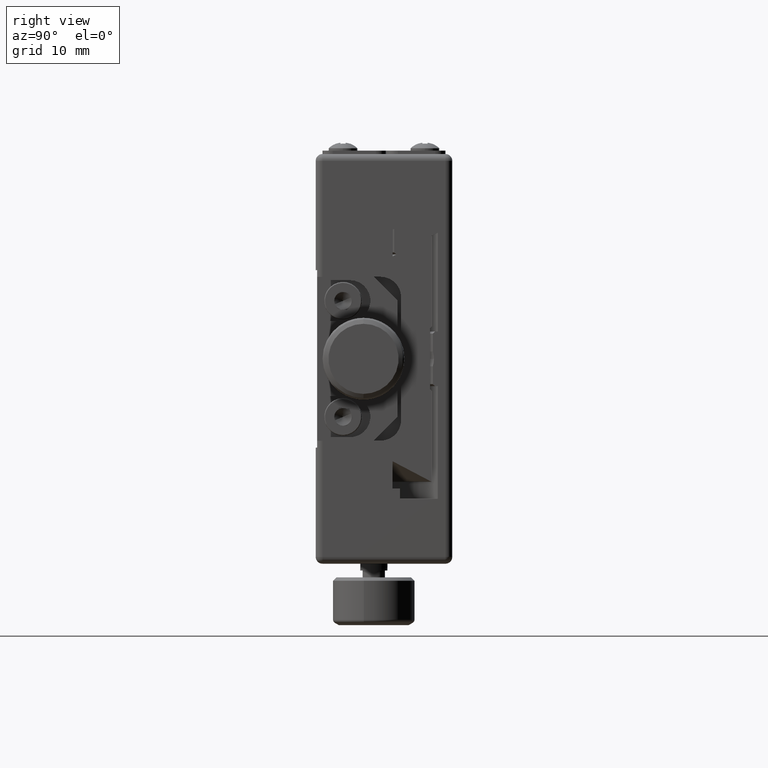
[diagram: clean part render]
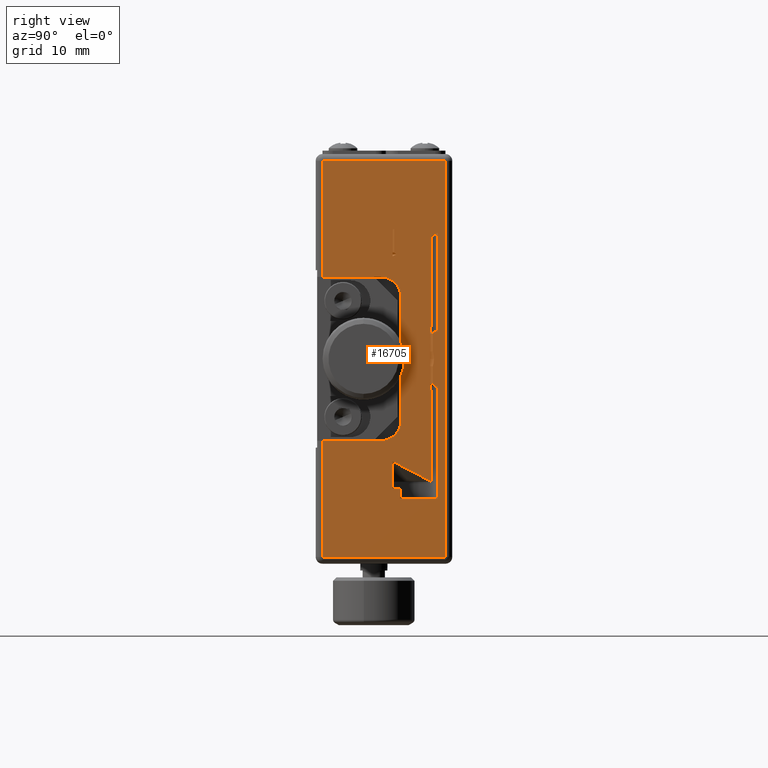
[diagram: same view with one face highlighted and labeled with its STEP entity id]
A machine part, right view. The second image highlights one B-rep face of the part: STEP entity #16705.
In plain terms, the highlighted planar face has unit normal (-1, 0, 0).
Its self-contained STEP definition (entity closure, byte-faithful):
#10 = CARTESIAN_POINT ( 'NONE',  ( 30.20294266869610311, -8.392311314680949152, -18.00000000000000000 ) ) ;
#210 = ORIENTED_EDGE ( 'NONE', *, *, #26606, .F. ) ;
#355 = EDGE_CURVE ( 'NONE', #30709, #576, #12602, .T. ) ;
#551 = CARTESIAN_POINT ( 'NONE',  ( 30.20294266869610311, -24.39231131468095271, 12.00000000000000000 ) ) ;
#572 = CARTESIAN_POINT ( 'NONE',  ( 30.20294266869610311, -25.19231131468094986, -12.00000000000000000 ) ) ;
#576 = VERTEX_POINT ( 'NONE', #34011 ) ;
#592 = VECTOR ( 'NONE', #15459, 1000.000000000000000 ) ;
#632 = VERTEX_POINT ( 'NONE', #3593 ) ;
#752 = DIRECTION ( 'NONE',  ( 0.000000000000000000, 0.000000000000000000, -1.000000000000000000 ) ) ;
#760 = VERTEX_POINT ( 'NONE', #21280 ) ;
#810 = ORIENTED_EDGE ( 'NONE', *, *, #1186, .F. ) ;
#833 = CARTESIAN_POINT ( 'NONE',  ( 30.20294266869610311, -8.392311314680949152, 4.721779902321929789 ) ) ;
#964 = CARTESIAN_POINT ( 'NONE',  ( 30.20294266869613153, -8.139194396920000685, 0.7294761927904745979 ) ) ;
#1013 = CARTESIAN_POINT ( 'NONE',  ( 30.20294266869610311, -14.13094673901852083, -15.00000000107774945 ) ) ;
#1103 = CARTESIAN_POINT ( 'NONE',  ( 30.20294266869610311, -14.13094673901852083, -15.00000000107774945 ) ) ;
#1128 = LINE ( 'NONE', #21066, #14824 ) ;
#1131 = ORIENTED_EDGE ( 'NONE', *, *, #8778, .F. ) ;
#1186 = EDGE_CURVE ( 'NONE', #33326, #18528, #26135, .T. ) ;
#1202 = CARTESIAN_POINT ( 'NONE',  ( 30.20294266869610311, -7.529256846304889450, 30.00000000000000000 ) ) ;
#1317 = EDGE_CURVE ( 'NONE', #26418, #632, #21059, .T. ) ;
#1332 = ORIENTED_EDGE ( 'NONE', *, *, #18548, .F. ) ;
#1368 = DIRECTION ( 'NONE',  ( 0.000000000000000000, 0.000000000000000000, -1.000000000000000000 ) ) ;
#1511 = ORIENTED_EDGE ( 'NONE', *, *, #34485, .F. ) ;
#1651 = CARTESIAN_POINT ( 'NONE',  ( 30.20294266869610311, -8.250266260733720713, 3.700000000000000178 ) ) ;
#2051 = CARTESIAN_POINT ( 'NONE',  ( 30.20294266869610311, -8.139430754232289900, -3.800027182686144922 ) ) ;
#2286 = VERTEX_POINT ( 'NONE', #10 ) ;
#2426 = CARTESIAN_POINT ( 'NONE',  ( 30.20294266869610311, -8.250266260733720713, 30.00000000000000000 ) ) ;
#2586 = EDGE_CURVE ( 'NONE', #21327, #30931, #4073, .T. ) ;
#2739 = DIRECTION ( 'NONE',  ( -1.000000000000000000, 0.000000000000000000, 0.000000000000000000 ) ) ;
#3025 = ORIENTED_EDGE ( 'NONE', *, *, #10467, .T. ) ;
#3191 = B_SPLINE_CURVE_WITH_KNOTS ( 'NONE', 3,
 ( #3608, #14999, #28622, #14446 ),
 .UNSPECIFIED., .F., .F.,
 ( 4, 4 ),
 ( 0.01298811321490420112, 0.01331899030960933920 ),
 .UNSPECIFIED. ) ;
#3235 = ORIENTED_EDGE ( 'NONE', *, *, #18021, .T. ) ;
#3349 = EDGE_CURVE ( 'NONE', #5542, #31042, #35688, .T. ) ;
#3423 = EDGE_CURVE ( 'NONE', #25913, #23621, #10139, .T. ) ;
#3519 = DIRECTION ( 'NONE',  ( 0.000000000000000000, 0.000000000000000000, -1.000000000000000000 ) ) ;
#3551 = EDGE_CURVE ( 'NONE', #26819, #8826, #9508, .T. ) ;
#3593 = CARTESIAN_POINT ( 'NONE',  ( 30.20294266869610311, -7.529256846304869910, -20.50000000000000000 ) ) ;
#3608 = CARTESIAN_POINT ( 'NONE',  ( 30.20294266869610311, -8.637864518048498752, -4.500000000000000000 ) ) ;
#3742 = ORIENTED_EDGE ( 'NONE', *, *, #33245, .F. ) ;
#4073 = LINE ( 'NONE', #21216, #36678 ) ;
#4169 = CARTESIAN_POINT ( 'NONE',  ( 30.20294266869610311, -13.03844941583199990, 30.00000000000000000 ) ) ;
#4342 = VERTEX_POINT ( 'NONE', #17008 ) ;
#4532 = CIRCLE ( 'NONE', #25399, 3.000000000000000888 ) ;
#4555 = VECTOR ( 'NONE', #12590, 1000.000000000000000 ) ;
#4572 = CARTESIAN_POINT ( 'NONE',  ( 30.20294266869610311, -8.250266260741659252, -1.085126720735905881 ) ) ;
#4736 = VECTOR ( 'NONE', #27037, 1000.000000000000000 ) ;
#5137 = EDGE_CURVE ( 'NONE', #9889, #26099, #22435, .T. ) ;
#5145 = VERTEX_POINT ( 'NONE', #8649 ) ;
#5278 = CARTESIAN_POINT ( 'NONE',  ( 30.20294266869610311, -8.123631864685485482, 18.15486313654718842 ) ) ;
#5357 = ORIENTED_EDGE ( 'NONE', *, *, #15384, .T. ) ;
#5470 = ORIENTED_EDGE ( 'NONE', *, *, #3349, .T. ) ;
#5542 = VERTEX_POINT ( 'NONE', #15863 ) ;
#5667 = ORIENTED_EDGE ( 'NONE', *, *, #18671, .T. ) ;
#5778 = ORIENTED_EDGE ( 'NONE', *, *, #12517, .F. ) ;
#5856 = CARTESIAN_POINT ( 'NONE',  ( 30.20294266869610311, -13.58505286391035938, 15.29999999999999893 ) ) ;
#6174 = CARTESIAN_POINT ( 'NONE',  ( 30.20294266869610311, -5.392311314680939383, -29.00000000000000000 ) ) ;
#6202 = LINE ( 'NONE', #19834, #18372 ) ;
#6215 = CARTESIAN_POINT ( 'NONE',  ( 30.20294266869610311, -7.529256846304869910, -4.000000000000000000 ) ) ;
#6233 = VERTEX_POINT ( 'NONE', #27132 ) ;
#6359 = CARTESIAN_POINT ( 'NONE',  ( 30.20294266869610311, -8.392311314680949152, 4.721779902321929789 ) ) ;
#6516 = DIRECTION ( 'NONE',  ( 0.000000000000000000, 0.000000000000000000, -1.000000000000000000 ) ) ;
#6587 = VERTEX_POINT ( 'NONE', #21438 ) ;
#6656 = B_SPLINE_CURVE_WITH_KNOTS ( 'NONE', 3,
 ( #33614, #5278, #27474, #30462 ),
 .UNSPECIFIED., .F., .F.,
 ( 4, 4 ),
 ( 0.02352887787165649017, 0.02453390777618489824 ),
 .UNSPECIFIED. ) ;
#6690 = CARTESIAN_POINT ( 'NONE',  ( 30.20294266869610311, -5.392311314680939383, 19.00000000000000000 ) ) ;
#6732 = EDGE_CURVE ( 'NONE', #35077, #15617, #22913, .T. ) ;
#6797 = CARTESIAN_POINT ( 'NONE',  ( 30.20294266869610311, -8.420694895847180561, -18.00000000000000000 ) ) ;
#6834 = CARTESIAN_POINT ( 'NONE',  ( 30.20294266869610311, -8.028570832167499560, 3.900027318441180224 ) ) ;
#6882 = VECTOR ( 'NONE', #7846, 1000.000000000000000 ) ;
#6890 = VERTEX_POINT ( 'NONE', #7933 ) ;
#7106 = CARTESIAN_POINT ( 'NONE',  ( 30.20294266869610311, -15.89231131468095093, -9.000000000000000000 ) ) ;
#7243 = CARTESIAN_POINT ( 'NONE',  ( 30.20294266869610311, -8.637864518048509410, -30.00000000000000000 ) ) ;
#7279 = CARTESIAN_POINT ( 'NONE',  ( 30.20294266869610311, -13.03844941583199990, -19.00000000000000000 ) ) ;
#7323 = VERTEX_POINT ( 'NONE', #5856 ) ;
#7374 = CARTESIAN_POINT ( 'NONE',  ( 30.20294266869610311, -8.139430754232289900, 3.800027182686114724 ) ) ;
#7410 = ORIENTED_EDGE ( 'NONE', *, *, #13383, .T. ) ;
#7591 = CARTESIAN_POINT ( 'NONE',  ( 30.20294266869610311, -6.392311314680939383, 30.00000000000000000 ) ) ;
#7794 = LINE ( 'NONE', #16342, #31731 ) ;
#7846 = DIRECTION ( 'NONE',  ( 0.000000000000000000, 1.000000000000000000, 1.865294060190104624E-16 ) ) ;
#7933 = CARTESIAN_POINT ( 'NONE',  ( 30.20294266869610311, -13.91267325184527870, 15.59999999999999964 ) ) ;
#8350 = EDGE_CURVE ( 'NONE', #31042, #6587, #25610, .T. ) ;
#8617 = LINE ( 'NONE', #6174, #34039 ) ;
#8625 = DIRECTION ( 'NONE',  ( 0.000000000000000000, -1.000000000000000000, 0.000000000000000000 ) ) ;
#8649 = CARTESIAN_POINT ( 'NONE',  ( 30.20294266869610311, -8.420694895847180561, -18.00000000000000000 ) ) ;
#8672 = EDGE_CURVE ( 'NONE', #30709, #8959, #26113, .T. ) ;
#8778 = EDGE_CURVE ( 'NONE', #14764, #6587, #11942, .T. ) ;
#8826 = VERTEX_POINT ( 'NONE', #551 ) ;
#8836 = CARTESIAN_POINT ( 'NONE',  ( 30.20294266869610311, -8.250266260733720713, -3.700000000000000178 ) ) ;
#8959 = VERTEX_POINT ( 'NONE', #21952 ) ;
#8990 = EDGE_CURVE ( 'NONE', #25179, #29918, #33137, .T. ) ;
#9011 = CARTESIAN_POINT ( 'NONE',  ( 30.20294266869610311, -8.392311314680949152, -4.721779902321929789 ) ) ;
#9225 = CARTESIAN_POINT ( 'NONE',  ( 30.20294266869610311, -8.556026500145549107, 4.573941295933430240 ) ) ;
#9239 = B_SPLINE_CURVE_WITH_KNOTS ( 'NONE', 3,
 ( #10178, #15939, #35894, #27329 ),
 .UNSPECIFIED., .F., .F.,
 ( 4, 4 ),
 ( 0.02160542353055149717, 0.02224716861814010627 ),
 .UNSPECIFIED. ) ;
#9486 = VECTOR ( 'NONE', #8625, 1000.000000000000000 ) ;
#9508 = LINE ( 'NONE', #17896, #18284 ) ;
#9531 = DIRECTION ( 'NONE',  ( 0.000000000000000000, 0.000000000000000000, -1.000000000000000000 ) ) ;
#9558 = VECTOR ( 'NONE', #17488, 1000.000000000000000 ) ;
#9780 = VECTOR ( 'NONE', #24324, 1000.000000000000000 ) ;
#9884 = VERTEX_POINT ( 'NONE', #12356 ) ;
#9889 = VERTEX_POINT ( 'NONE', #13631 ) ;
#9902 = DIRECTION ( 'NONE',  ( 1.000000000000000000, 0.000000000000000000, 0.000000000000000000 ) ) ;
#9977 = VECTOR ( 'NONE', #36715, 1000.000000000000000 ) ;
#10049 = LINE ( 'NONE', #7243, #29582 ) ;
#10093 = ORIENTED_EDGE ( 'NONE', *, *, #3423, .T. ) ;
#10112 = ORIENTED_EDGE ( 'NONE', *, *, #29898, .T. ) ;
#10139 = LINE ( 'NONE', #1202, #4555 ) ;
#10178 = CARTESIAN_POINT ( 'NONE',  ( 30.20294266869610311, -14.13094673901852083, 15.00000000107774945 ) ) ;
#10258 = ORIENTED_EDGE ( 'NONE', *, *, #5137, .F. ) ;
#10433 = DIRECTION ( 'NONE',  ( 0.000000000000000000, 1.000000000000000000, 0.000000000000000000 ) ) ;
#10467 = EDGE_CURVE ( 'NONE', #26955, #760, #17964, .T. ) ;
#10559 = DIRECTION ( 'NONE',  ( 0.000000000000000000, 1.000000000000000000, 0.000000000000000000 ) ) ;
#10697 = EDGE_CURVE ( 'NONE', #7323, #4342, #10939, .T. ) ;
#10754 = VECTOR ( 'NONE', #14912, 1000.000000000000000 ) ;
#10782 = CARTESIAN_POINT ( 'NONE',  ( 30.20294266869610311, -5.392311314680939383, 30.00000000000000000 ) ) ;
#10939 = LINE ( 'NONE', #36658, #31488 ) ;
#11146 = CARTESIAN_POINT ( 'NONE',  ( 30.20294266869610311, -8.637864518048498752, 4.500000000000000000 ) ) ;
#11189 = VECTOR ( 'NONE', #16850, 1000.000000000000000 ) ;
#11435 = CARTESIAN_POINT ( 'NONE',  ( 30.20294266869610311, -5.392311314680939383, -19.00000000000000000 ) ) ;
#11820 = ORIENTED_EDGE ( 'NONE', *, *, #19270, .F. ) ;
#11942 = LINE ( 'NONE', #20863, #21425 ) ;
#12062 = CARTESIAN_POINT ( 'NONE',  ( 30.20294266869610311, -7.917686163617279504, 4.000000000000000000 ) ) ;
#12191 = CARTESIAN_POINT ( 'NONE',  ( 30.20294266869610311, -15.89231131468095093, 9.000000000000000000 ) ) ;
#12274 = DIRECTION ( 'NONE',  ( 2.040851148208009970E-16, -1.000000000000000000, 0.000000000000000000 ) ) ;
#12356 = CARTESIAN_POINT ( 'NONE',  ( 30.20294266869610311, -8.637864518048498752, -4.500000000000000000 ) ) ;
#12517 = EDGE_CURVE ( 'NONE', #9884, #32824, #3191, .T. ) ;
#12521 = ORIENTED_EDGE ( 'NONE', *, *, #8990, .T. ) ;
#12590 = DIRECTION ( 'NONE',  ( 0.000000000000000000, 0.000000000000000000, -1.000000000000000000 ) ) ;
#12602 = LINE ( 'NONE', #23970, #9780 ) ;
#12761 = DIRECTION ( 'NONE',  ( 0.000000000000000000, 0.000000000000000000, 1.000000000000000000 ) ) ;
#12833 = LINE ( 'NONE', #29082, #10754 ) ;
#13213 = VERTEX_POINT ( 'NONE', #6359 ) ;
#13383 = EDGE_CURVE ( 'NONE', #760, #26418, #18287, .T. ) ;
#13484 = DIRECTION ( 'NONE',  ( 0.000000000000000000, -1.000000000000000000, 0.000000000000000000 ) ) ;
#13624 = EDGE_CURVE ( 'NONE', #32824, #2286, #29087, .T. ) ;
#13631 = CARTESIAN_POINT ( 'NONE',  ( 30.20294266869610311, -15.89231131468095093, 12.00000000000000000 ) ) ;
#13702 = ORIENTED_EDGE ( 'NONE', *, *, #1317, .T. ) ;
#13749 = B_SPLINE_CURVE_WITH_KNOTS ( 'NONE', 3,
 ( #833, #26576, #9225, #26027 ),
 .UNSPECIFIED., .F., .F.,
 ( 4, 4 ),
 ( 0.01205960798659084024, 0.01239048092930732092 ),
 .UNSPECIFIED. ) ;
#14358 = EDGE_CURVE ( 'NONE', #576, #4342, #9239, .T. ) ;
#14446 = CARTESIAN_POINT ( 'NONE',  ( 30.20294266869610311, -8.392311314680949152, -4.721779902321929789 ) ) ;
#14764 = VERTEX_POINT ( 'NONE', #1103 ) ;
#14824 = VECTOR ( 'NONE', #9531, 1000.000000000000000 ) ;
#14912 = DIRECTION ( 'NONE',  ( 0.000000000000000000, 0.000000000000000000, -1.000000000000000000 ) ) ;
#14979 = CARTESIAN_POINT ( 'NONE',  ( 30.20294266869610311, -15.89231131468095093, -12.00000000000000000 ) ) ;
#14999 = CARTESIAN_POINT ( 'NONE',  ( 30.20294266869610311, -8.556026500145549107, -4.573941295933430240 ) ) ;
#15154 = CARTESIAN_POINT ( 'NONE',  ( 30.20294266869610311, -8.250266260733720713, 1.085126720710519965 ) ) ;
#15384 = EDGE_CURVE ( 'NONE', #29918, #26819, #35864, .T. ) ;
#15459 = DIRECTION ( 'NONE',  ( 0.000000000000000000, 1.000000000000000000, 0.000000000000000000 ) ) ;
#15492 = ORIENTED_EDGE ( 'NONE', *, *, #20383, .F. ) ;
#15523 = ORIENTED_EDGE ( 'NONE', *, *, #27769, .T. ) ;
#15536 = CARTESIAN_POINT ( 'NONE',  ( 30.20294266869610311, -8.084017305186209867, -2.950043370847070137E-14 ) ) ;
#15617 = VERTEX_POINT ( 'NONE', #15682 ) ;
#15635 = EDGE_LOOP ( 'NONE', ( #34302, #17781, #21265, #5667, #20997, #30018 ) ) ;
#15674 = CARTESIAN_POINT ( 'NONE',  ( 30.20294266869610311, -24.39231131468095271, -29.00000000000000000 ) ) ;
#15682 = CARTESIAN_POINT ( 'NONE',  ( 30.20294266869610311, -8.392311314680949152, 18.00000000000000000 ) ) ;
#15730 = EDGE_CURVE ( 'NONE', #27492, #6233, #30986, .T. ) ;
#15826 = AXIS2_PLACEMENT_3D ( 'NONE', #10782, #2739, #30721 ) ;
#15863 = CARTESIAN_POINT ( 'NONE',  ( 30.20294266869610311, -13.03844941583199990, -20.50000000000000000 ) ) ;
#15939 = CARTESIAN_POINT ( 'NONE',  ( 30.20294266869610311, -13.94186646203758606, 15.10005187922150682 ) ) ;
#16342 = CARTESIAN_POINT ( 'NONE',  ( 30.20294266869610311, -24.89231131468095271, 12.00000000000000000 ) ) ;
#16400 = CARTESIAN_POINT ( 'NONE',  ( 30.20294266869610311, -13.91267325184527870, 15.59999999999999964 ) ) ;
#16402 = CARTESIAN_POINT ( 'NONE',  ( 30.20294266869610311, -25.19231131468094986, -12.00000000000000000 ) ) ;
#16705 = ADVANCED_FACE ( 'NONE', ( #31113, #36683, #30921 ), #16910, .F. ) ;
#16714 = VERTEX_POINT ( 'NONE', #11146 ) ;
#16850 = DIRECTION ( 'NONE',  ( 0.000000000000000000, -1.000000000000000000, 1.865294060190104624E-16 ) ) ;
#16910 = PLANE ( 'NONE',  #15826 ) ;
#16969 = CARTESIAN_POINT ( 'NONE',  ( 30.20294266869610311, -7.917686163617279504, -4.000000000000000000 ) ) ;
#16987 = DIRECTION ( 'NONE',  ( 0.000000000000000000, 1.000000000000000000, 0.000000000000000000 ) ) ;
#17008 = CARTESIAN_POINT ( 'NONE',  ( 30.20294266869610311, -13.56362322283755084, 15.30000074034431456 ) ) ;
#17488 = DIRECTION ( 'NONE',  ( 0.000000000000000000, -1.000000000000000000, 0.000000000000000000 ) ) ;
#17518 = ORIENTED_EDGE ( 'NONE', *, *, #13624, .F. ) ;
#17544 = CARTESIAN_POINT ( 'NONE',  ( 30.20294266869610311, -6.392311314680939383, 29.00000000000000000 ) ) ;
#17565 = VECTOR ( 'NONE', #13484, 1000.000000000000000 ) ;
#17755 = B_SPLINE_CURVE_WITH_KNOTS ( 'NONE', 3,
 ( #16400, #22009, #33390, #27795 ),
 .UNSPECIFIED., .F., .F.,
 ( 4, 4 ),
 ( 0.01500925413064200034, 0.01545347146774465018 ),
 .UNSPECIFIED. ) ;
#17781 = ORIENTED_EDGE ( 'NONE', *, *, #8672, .T. ) ;
#17821 = CARTESIAN_POINT ( 'NONE',  ( 30.20294266869610311, -12.23047201273930007, -16.00563670081744760 ) ) ;
#17896 = CARTESIAN_POINT ( 'NONE',  ( 30.20294266869610311, -24.39231131468095271, 30.00000000000000000 ) ) ;
#17964 = B_SPLINE_CURVE_WITH_KNOTS ( 'NONE', 3,
 ( #27612, #2051, #24809, #16969 ),
 .UNSPECIFIED., .F., .F.,
 ( 4, 4 ),
 ( 0.000000000000000000, 0.0004478945422730415795 ),
 .UNSPECIFIED. ) ;
#18021 = EDGE_CURVE ( 'NONE', #35077, #25913, #6656, .T. ) ;
#18284 = VECTOR ( 'NONE', #6516, 1000.000000000000000 ) ;
#18287 = LINE ( 'NONE', #33179, #22643 ) ;
#18372 = VECTOR ( 'NONE', #34562, 1000.000000000000000 ) ;
#18528 = VERTEX_POINT ( 'NONE', #14979 ) ;
#18548 = EDGE_CURVE ( 'NONE', #24625, #6233, #20848, .T. ) ;
#18577 = CARTESIAN_POINT ( 'NONE',  ( 30.20294266869610311, -8.250266260733720713, 3.700000000000000178 ) ) ;
#18607 = DIRECTION ( 'NONE',  ( 0.000000000000000000, 0.000000000000000000, -1.000000000000000000 ) ) ;
#18671 = EDGE_CURVE ( 'NONE', #6890, #7323, #17755, .T. ) ;
#18781 = ORIENTED_EDGE ( 'NONE', *, *, #25740, .T. ) ;
#18819 = VERTEX_POINT ( 'NONE', #34867 ) ;
#19015 = VECTOR ( 'NONE', #19155, 1000.000000000000000 ) ;
#19148 = CARTESIAN_POINT ( 'NONE',  ( 30.20294266869610311, -7.529256846304889450, 18.46410161513774995 ) ) ;
#19155 = DIRECTION ( 'NONE',  ( 0.000000000000000000, 0.000000000000000000, 1.000000000000000000 ) ) ;
#19270 = EDGE_CURVE ( 'NONE', #5145, #14764, #23033, .T. ) ;
#19432 = CARTESIAN_POINT ( 'NONE',  ( 30.20294266869610311, -8.420694895847141481, 18.00000000000000000 ) ) ;
#19685 = VECTOR ( 'NONE', #1368, 1000.000000000000000 ) ;
#19756 = CARTESIAN_POINT ( 'NONE',  ( 30.20294266869610311, -8.392311314680949152, 30.00000000000000000 ) ) ;
#19779 = EDGE_CURVE ( 'NONE', #24634, #18819, #6202, .T. ) ;
#19834 = CARTESIAN_POINT ( 'NONE',  ( 30.20294266869610311, -12.89231131468092073, 9.000000000000000000 ) ) ;
#19918 = CARTESIAN_POINT ( 'NONE',  ( 30.20294266869610311, -5.392311314680939383, 4.000000000000000000 ) ) ;
#20206 = B_SPLINE_CURVE_WITH_KNOTS ( 'NONE', 3,
 ( #35006, #6834, #7374, #18577 ),
 .UNSPECIFIED., .F., .F.,
 ( 4, 4 ),
 ( 9.813077866773588629E-18, 0.0004478945422730744850 ),
 .UNSPECIFIED. ) ;
#20383 = EDGE_CURVE ( 'NONE', #18819, #9889, #36829, .T. ) ;
#20749 = AXIS2_PLACEMENT_3D ( 'NONE', #12191, #34929, #23938 ) ;
#20758 = EDGE_CURVE ( 'NONE', #8959, #6890, #1128, .T. ) ;
#20848 = B_SPLINE_CURVE_WITH_KNOTS ( 'NONE', 3,
 ( #31763, #23376, #964, #15154 ),
 .UNSPECIFIED., .F., .F.,
 ( 4, 4 ),
 ( 0.000000000000000000, 1.000000000000000000 ),
 .UNSPECIFIED. ) ;
#20863 = CARTESIAN_POINT ( 'NONE',  ( 30.20294266869610311, -14.13094673901852083, -30.00000000000000000 ) ) ;
#20997 = ORIENTED_EDGE ( 'NONE', *, *, #10697, .T. ) ;
#21059 = LINE ( 'NONE', #26317, #22952 ) ;
#21066 = CARTESIAN_POINT ( 'NONE',  ( 30.20294266869610311, -13.91267325184527870, 30.00000000000000000 ) ) ;
#21087 = DIRECTION ( 'NONE',  ( 0.000000000000000000, 0.000000000000000000, -1.000000000000000000 ) ) ;
#21216 = CARTESIAN_POINT ( 'NONE',  ( 30.20294266869610311, -24.39231131468095271, 30.00000000000000000 ) ) ;
#21265 = ORIENTED_EDGE ( 'NONE', *, *, #20758, .T. ) ;
#21280 = CARTESIAN_POINT ( 'NONE',  ( 30.20294266869610311, -7.917686163617279504, -4.000000000000000000 ) ) ;
#21327 = VERTEX_POINT ( 'NONE', #30149 ) ;
#21425 = VECTOR ( 'NONE', #34492, 1000.000000000000000 ) ;
#21438 = CARTESIAN_POINT ( 'NONE',  ( 30.20294266869610311, -14.13094673901852083, -19.00000000000000000 ) ) ;
#21528 = CARTESIAN_POINT ( 'NONE',  ( 30.20294266869610311, -8.250266260741659252, -1.085126720735905881 ) ) ;
#21694 = ORIENTED_EDGE ( 'NONE', *, *, #6732, .F. ) ;
#21703 = CARTESIAN_POINT ( 'NONE',  ( 30.20294266869610311, -8.084017305186209867, -2.950043370847070137E-14 ) ) ;
#21866 = ORIENTED_EDGE ( 'NONE', *, *, #3551, .T. ) ;
#21952 = CARTESIAN_POINT ( 'NONE',  ( 30.20294266869610311, -13.91267325184526094, 19.00000000000000000 ) ) ;
#22009 = CARTESIAN_POINT ( 'NONE',  ( 30.20294266869610311, -13.80348580709926054, 15.49997910116320021 ) ) ;
#22200 = ORIENTED_EDGE ( 'NONE', *, *, #36148, .T. ) ;
#22435 = LINE ( 'NONE', #33825, #11189 ) ;
#22553 = CARTESIAN_POINT ( 'NONE',  ( 30.20294266869610311, -8.392311314680949152, 18.00000000000000000 ) ) ;
#22643 = VECTOR ( 'NONE', #10433, 1000.000000000000000 ) ;
#22781 = ORIENTED_EDGE ( 'NONE', *, *, #27498, .T. ) ;
#22823 = EDGE_CURVE ( 'NONE', #36206, #24625, #23217, .T. ) ;
#22913 = LINE ( 'NONE', #22553, #9977 ) ;
#22952 = VECTOR ( 'NONE', #752, 1000.000000000000000 ) ;
#23033 = B_SPLINE_CURVE_WITH_KNOTS ( 'NONE', 3,
 ( #6797, #31987, #17821, #1013 ),
 .UNSPECIFIED., .F., .F.,
 ( 4, 4 ),
 ( 0.01874789689577345195, 0.02519772949024874989 ),
 .UNSPECIFIED. ) ;
#23217 = B_SPLINE_CURVE_WITH_KNOTS ( 'NONE', 3,
 ( #21528, #30488, #33642, #21703 ),
 .UNSPECIFIED., .F., .F.,
 ( 4, 4 ),
 ( 0.000000000000000000, 1.000000000000000000 ),
 .UNSPECIFIED. ) ;
#23364 = CARTESIAN_POINT ( 'NONE',  ( 30.20294266869610311, -14.13094673901852083, 19.00000000000000355 ) ) ;
#23376 = CARTESIAN_POINT ( 'NONE',  ( 30.20294266869622390, -8.084017305186465663, 0.3630913522294864637 ) ) ;
#23576 = VECTOR ( 'NONE', #25006, 1000.000000000000000 ) ;
#23621 = VERTEX_POINT ( 'NONE', #25705 ) ;
#23938 = DIRECTION ( 'NONE',  ( 0.000000000000000000, 0.000000000000000000, 1.000000000000000000 ) ) ;
#23970 = CARTESIAN_POINT ( 'NONE',  ( 30.20294266869610311, -14.13094673901852083, -30.00000000000000000 ) ) ;
#24038 = DIRECTION ( 'NONE',  ( 0.000000000000000000, 0.000000000000000000, -1.000000000000000000 ) ) ;
#24324 = DIRECTION ( 'NONE',  ( 0.000000000000000000, 0.000000000000000000, -1.000000000000000000 ) ) ;
#24420 = VECTOR ( 'NONE', #12274, 1000.000000000000000 ) ;
#24625 = VERTEX_POINT ( 'NONE', #15536 ) ;
#24634 = VERTEX_POINT ( 'NONE', #27273 ) ;
#24809 = CARTESIAN_POINT ( 'NONE',  ( 30.20294266869610311, -8.028570832167508442, -3.900027318441199764 ) ) ;
#25006 = DIRECTION ( 'NONE',  ( 0.000000000000000000, 0.000000000000000000, -1.000000000000000000 ) ) ;
#25179 = VERTEX_POINT ( 'NONE', #30249 ) ;
#25399 = AXIS2_PLACEMENT_3D ( 'NONE', #7106, #9902, #21087 ) ;
#25610 = LINE ( 'NONE', #11435, #9486 ) ;
#25705 = CARTESIAN_POINT ( 'NONE',  ( 30.20294266869610311, -7.529256846304869910, 4.000000000000000000 ) ) ;
#25740 = EDGE_CURVE ( 'NONE', #36206, #26955, #12833, .T. ) ;
#25913 = VERTEX_POINT ( 'NONE', #19148 ) ;
#26027 = CARTESIAN_POINT ( 'NONE',  ( 30.20294266869610311, -8.637864518048498752, 4.500000000000000000 ) ) ;
#26099 = VERTEX_POINT ( 'NONE', #32207 ) ;
#26113 = LINE ( 'NONE', #6690, #592 ) ;
#26135 = LINE ( 'NONE', #572, #28892 ) ;
#26317 = CARTESIAN_POINT ( 'NONE',  ( 30.20294266869610311, -7.529256846304869910, 30.00000000000000000 ) ) ;
#26418 = VERTEX_POINT ( 'NONE', #6215 ) ;
#26576 = CARTESIAN_POINT ( 'NONE',  ( 30.20294266869610311, -8.474175478015919083, 4.647867981340220389 ) ) ;
#26606 = EDGE_CURVE ( 'NONE', #15617, #13213, #27461, .T. ) ;
#26684 = CARTESIAN_POINT ( 'NONE',  ( 30.20294266869610311, -5.392311314680939383, -20.50000000000000000 ) ) ;
#26819 = VERTEX_POINT ( 'NONE', #36779 ) ;
#26886 = ORIENTED_EDGE ( 'NONE', *, *, #27917, .F. ) ;
#26955 = VERTEX_POINT ( 'NONE', #8836 ) ;
#27037 = DIRECTION ( 'NONE',  ( 0.000000000000000000, -1.000000000000000000, 0.000000000000000000 ) ) ;
#27132 = CARTESIAN_POINT ( 'NONE',  ( 30.20294266869610311, -8.250266260733720713, 1.085126720710519965 ) ) ;
#27273 = CARTESIAN_POINT ( 'NONE',  ( 30.20294266869610311, -12.89231131468092073, -9.000000000000000000 ) ) ;
#27329 = CARTESIAN_POINT ( 'NONE',  ( 30.20294266869610311, -13.56362322283755084, 15.30000074034431456 ) ) ;
#27461 = LINE ( 'NONE', #27635, #19685 ) ;
#27474 = CARTESIAN_POINT ( 'NONE',  ( 30.20294266869610311, -7.826486288758111698, 18.30956478151243516 ) ) ;
#27492 = VERTEX_POINT ( 'NONE', #1651 ) ;
#27498 = EDGE_CURVE ( 'NONE', #632, #5542, #32279, .T. ) ;
#27612 = CARTESIAN_POINT ( 'NONE',  ( 30.20294266869610311, -8.250266260733720713, -3.700000000000000178 ) ) ;
#27635 = CARTESIAN_POINT ( 'NONE',  ( 30.20294266869610311, -8.392311314680949152, 30.00000000000000000 ) ) ;
#27734 = DIRECTION ( 'NONE',  ( -5.419128459088559373E-17, -1.000000000000000000, 1.665334536937734811E-16 ) ) ;
#27769 = EDGE_CURVE ( 'NONE', #23621, #28224, #36907, .T. ) ;
#27795 = CARTESIAN_POINT ( 'NONE',  ( 30.20294266869610311, -13.58505286391035938, 15.29999999999999893 ) ) ;
#27917 = EDGE_CURVE ( 'NONE', #2286, #5145, #35021, .T. ) ;
#28083 = EDGE_LOOP ( 'NONE', ( #5357, #21866, #33827, #10258, #15492, #36294, #28329, #810, #3742, #35296, #10112, #12521 ) ) ;
#28224 = VERTEX_POINT ( 'NONE', #12062 ) ;
#28329 = ORIENTED_EDGE ( 'NONE', *, *, #34110, .F. ) ;
#28622 = CARTESIAN_POINT ( 'NONE',  ( 30.20294266869610311, -8.474175478015919083, -4.647867981340230159 ) ) ;
#28892 = VECTOR ( 'NONE', #34695, 1000.000000000000000 ) ;
#29000 = VECTOR ( 'NONE', #12761, 1000.000000000000000 ) ;
#29082 = CARTESIAN_POINT ( 'NONE',  ( 30.20294266869610311, -8.250266260733720713, 30.00000000000000000 ) ) ;
#29087 = LINE ( 'NONE', #19756, #31014 ) ;
#29582 = VECTOR ( 'NONE', #24038, 1000.000000000000000 ) ;
#29769 = ORIENTED_EDGE ( 'NONE', *, *, #8350, .T. ) ;
#29898 = EDGE_CURVE ( 'NONE', #30931, #25179, #8617, .T. ) ;
#29918 = VERTEX_POINT ( 'NONE', #17544 ) ;
#30018 = ORIENTED_EDGE ( 'NONE', *, *, #14358, .F. ) ;
#30149 = CARTESIAN_POINT ( 'NONE',  ( 30.20294266869610311, -24.39231131468095271, -12.00000000000000000 ) ) ;
#30249 = CARTESIAN_POINT ( 'NONE',  ( 30.20294266869610311, -6.392311314680939383, -29.00000000000000000 ) ) ;
#30462 = CARTESIAN_POINT ( 'NONE',  ( 30.20294266869610311, -7.529256846304889450, 18.46410161513774995 ) ) ;
#30481 = EDGE_LOOP ( 'NONE', ( #21694, #3235, #10093, #15523, #22200, #35440, #1332, #33358, #18781, #3025, #7410, #13702, #22781, #5470, #29769, #1131, #11820, #26886, #17518, #5778, #1511, #34147, #210 ) ) ;
#30488 = CARTESIAN_POINT ( 'NONE',  ( 30.20294266869611377, -8.139194396922613706, -0.7294761928077736490 ) ) ;
#30709 = VERTEX_POINT ( 'NONE', #23364 ) ;
#30721 = DIRECTION ( 'NONE',  ( 0.000000000000000000, 0.000000000000000000, 1.000000000000000000 ) ) ;
#30784 = CARTESIAN_POINT ( 'NONE',  ( 30.20294266869610311, -16.89231131468095271, -12.00000000000000000 ) ) ;
#30921 = FACE_OUTER_BOUND ( 'NONE', #28083, .T. ) ;
#30931 = VERTEX_POINT ( 'NONE', #15674 ) ;
#30986 = LINE ( 'NONE', #2426, #23576 ) ;
#31014 = VECTOR ( 'NONE', #3519, 1000.000000000000000 ) ;
#31042 = VERTEX_POINT ( 'NONE', #7279 ) ;
#31113 = FACE_BOUND ( 'NONE', #30481, .T. ) ;
#31488 = VECTOR ( 'NONE', #10559, 1000.000000000000000 ) ;
#31505 = EDGE_CURVE ( 'NONE', #26099, #8826, #7794, .T. ) ;
#31731 = VECTOR ( 'NONE', #27734, 1000.000000000000000 ) ;
#31763 = CARTESIAN_POINT ( 'NONE',  ( 30.20294266869610311, -8.084017305186209867, -2.950043370847070137E-14 ) ) ;
#31987 = CARTESIAN_POINT ( 'NONE',  ( 30.20294266869610311, -10.32723031120799995, -17.00610373731790048 ) ) ;
#32207 = CARTESIAN_POINT ( 'NONE',  ( 30.20294266869610311, -16.89231131468095271, 12.00000000000000000 ) ) ;
#32235 = CARTESIAN_POINT ( 'NONE',  ( 30.20294266869610311, -8.392311314680949152, -18.00000000000000000 ) ) ;
#32279 = LINE ( 'NONE', #26684, #4736 ) ;
#32435 = EDGE_CURVE ( 'NONE', #13213, #16714, #13749, .T. ) ;
#32824 = VERTEX_POINT ( 'NONE', #9011 ) ;
#33137 = LINE ( 'NONE', #7591, #19015 ) ;
#33179 = CARTESIAN_POINT ( 'NONE',  ( 30.20294266869610311, -5.392311314680939383, -4.000000000000000000 ) ) ;
#33245 = EDGE_CURVE ( 'NONE', #21327, #33326, #33392, .T. ) ;
#33326 = VERTEX_POINT ( 'NONE', #30784 ) ;
#33358 = ORIENTED_EDGE ( 'NONE', *, *, #22823, .F. ) ;
#33390 = CARTESIAN_POINT ( 'NONE',  ( 30.20294266869610311, -13.69427909594729975, 15.39997900955289900 ) ) ;
#33392 = LINE ( 'NONE', #16402, #6882 ) ;
#33614 = CARTESIAN_POINT ( 'NONE',  ( 30.20294266869610311, -8.420694895847141481, 18.00000000000000000 ) ) ;
#33642 = CARTESIAN_POINT ( 'NONE',  ( 30.20294266869622390, -8.084017305186465663, -0.3630913522379798364 ) ) ;
#33825 = CARTESIAN_POINT ( 'NONE',  ( 30.20294266869610311, -25.19231131468094986, 12.00000000000000000 ) ) ;
#33827 = ORIENTED_EDGE ( 'NONE', *, *, #31505, .F. ) ;
#34011 = CARTESIAN_POINT ( 'NONE',  ( 30.20294266869610311, -14.13094673901852083, 15.00000000107774945 ) ) ;
#34039 = VECTOR ( 'NONE', #16987, 1000.000000000000000 ) ;
#34110 = EDGE_CURVE ( 'NONE', #18528, #24634, #4532, .T. ) ;
#34147 = ORIENTED_EDGE ( 'NONE', *, *, #32435, .F. ) ;
#34302 = ORIENTED_EDGE ( 'NONE', *, *, #355, .F. ) ;
#34485 = EDGE_CURVE ( 'NONE', #16714, #9884, #10049, .T. ) ;
#34492 = DIRECTION ( 'NONE',  ( 0.000000000000000000, 0.000000000000000000, -1.000000000000000000 ) ) ;
#34562 = DIRECTION ( 'NONE',  ( 0.000000000000000000, 0.000000000000000000, 1.000000000000000000 ) ) ;
#34695 = DIRECTION ( 'NONE',  ( 0.000000000000000000, 1.000000000000000000, 1.865294060190104624E-16 ) ) ;
#34867 = CARTESIAN_POINT ( 'NONE',  ( 30.20294266869610311, -12.89231131468092073, 9.000000000000000000 ) ) ;
#34929 = DIRECTION ( 'NONE',  ( 1.000000000000000000, 0.000000000000000000, 0.000000000000000000 ) ) ;
#35006 = CARTESIAN_POINT ( 'NONE',  ( 30.20294266869610311, -7.917686163617279504, 4.000000000000000000 ) ) ;
#35021 = LINE ( 'NONE', #32235, #24420 ) ;
#35077 = VERTEX_POINT ( 'NONE', #19432 ) ;
#35296 = ORIENTED_EDGE ( 'NONE', *, *, #2586, .T. ) ;
#35440 = ORIENTED_EDGE ( 'NONE', *, *, #15730, .T. ) ;
#35688 = LINE ( 'NONE', #4169, #29000 ) ;
#35864 = LINE ( 'NONE', #36422, #17565 ) ;
#35894 = CARTESIAN_POINT ( 'NONE',  ( 30.20294266869610311, -13.75275879622304664, 15.20005258558620476 ) ) ;
#36148 = EDGE_CURVE ( 'NONE', #28224, #27492, #20206, .T. ) ;
#36206 = VERTEX_POINT ( 'NONE', #4572 ) ;
#36294 = ORIENTED_EDGE ( 'NONE', *, *, #19779, .F. ) ;
#36422 = CARTESIAN_POINT ( 'NONE',  ( 30.20294266869610311, -14.13094673901852083, 29.00000000000000000 ) ) ;
#36658 = CARTESIAN_POINT ( 'NONE',  ( 30.20294266869610311, -5.392311314680939383, 15.29999999999999893 ) ) ;
#36678 = VECTOR ( 'NONE', #18607, 1000.000000000000000 ) ;
#36683 = FACE_BOUND ( 'NONE', #15635, .T. ) ;
#36715 = DIRECTION ( 'NONE',  ( -2.040851148208009970E-16, 1.000000000000000000, 0.000000000000000000 ) ) ;
#36779 = CARTESIAN_POINT ( 'NONE',  ( 30.20294266869610311, -24.39231131468095271, 29.00000000000000000 ) ) ;
#36829 = CIRCLE ( 'NONE', #20749, 3.000000000000000888 ) ;
#36907 = LINE ( 'NONE', #19918, #9558 ) ;